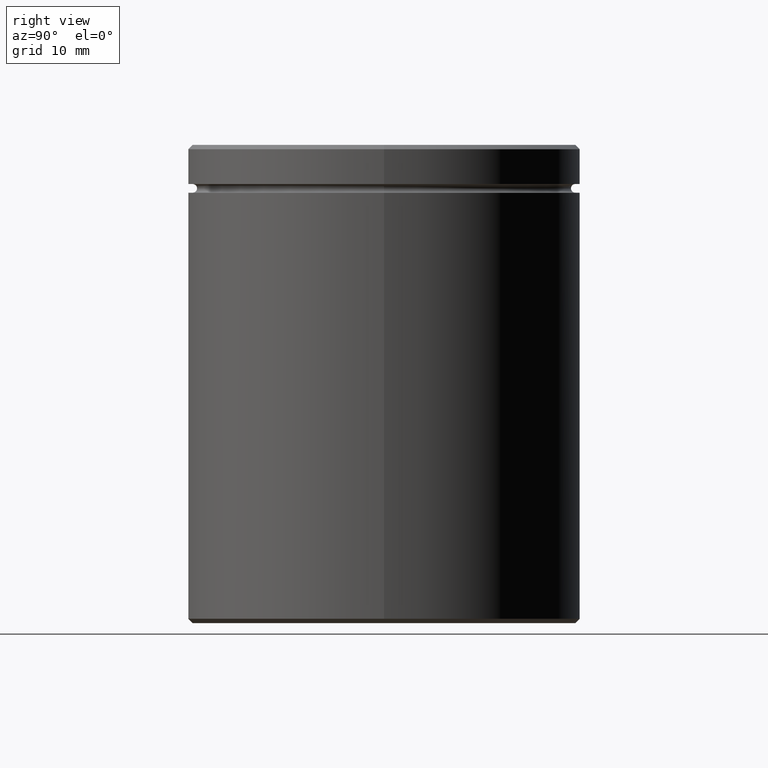
[diagram: clean part render]
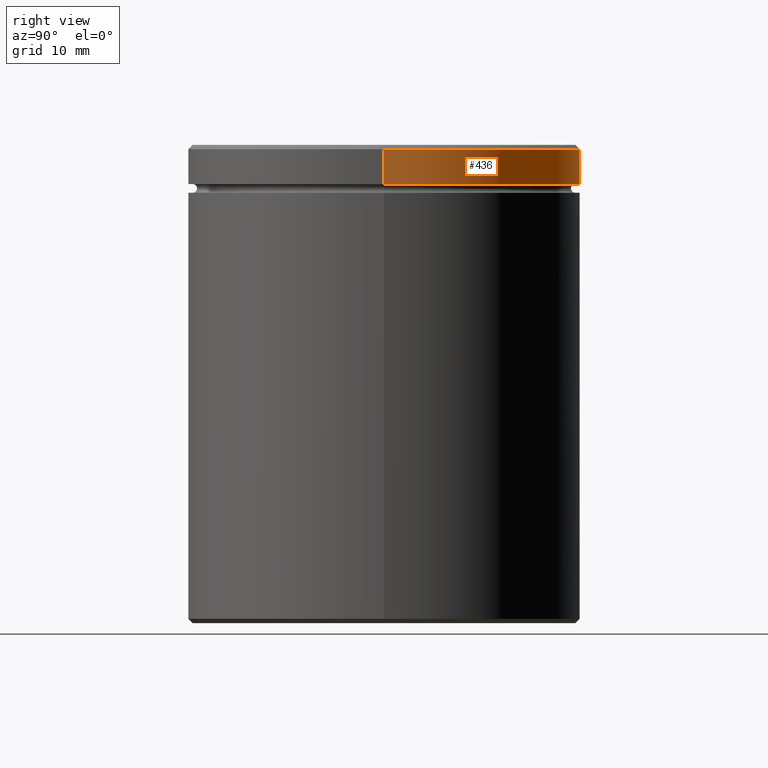
[diagram: same view with one face highlighted and labeled with its STEP entity id]
A machine part, right view. The second image highlights one B-rep face of the part: STEP entity #436.
In plain terms, the highlighted cylindrical surface (partial cylindrical patch) has radius 22.5 mm, axis along (-0, -0, 1).
Its self-contained STEP definition (entity closure, byte-faithful):
#16 = DIRECTION ( 'NONE',  ( -0.000000000000000000, -0.000000000000000000, 1.000000000000000000 ) ) ;
#53 = DIRECTION ( 'NONE',  ( 1.000000000000000000, 0.000000000000000000, 0.000000000000000000 ) ) ;
#68 = ORIENTED_EDGE ( 'NONE', *, *, #241, .T. ) ;
#127 = CARTESIAN_POINT ( 'NONE',  ( 22.50000000000000000, 0.000000000000000000, -0.5000000000000212053 ) ) ;
#149 = DIRECTION ( 'NONE',  ( -0.000000000000000000, -0.000000000000000000, 1.000000000000000000 ) ) ;
#160 = LINE ( 'NONE', #260, #287 ) ;
#163 = DIRECTION ( 'NONE',  ( -0.000000000000000000, -0.000000000000000000, 1.000000000000000000 ) ) ;
#173 = EDGE_CURVE ( 'NONE', #500, #434, #238, .T. ) ;
#180 = CIRCLE ( 'NONE', #502, 22.50000000000000000 ) ;
#183 = DIRECTION ( 'NONE',  ( 1.000000000000000000, 0.000000000000000000, 0.000000000000000000 ) ) ;
#203 = ORIENTED_EDGE ( 'NONE', *, *, #173, .T. ) ;
#211 = DIRECTION ( 'NONE',  ( -0.000000000000000000, -0.000000000000000000, 1.000000000000000000 ) ) ;
#221 = VERTEX_POINT ( 'NONE', #547 ) ;
#222 = EDGE_CURVE ( 'NONE', #434, #293, #180, .T. ) ;
#233 = DIRECTION ( 'NONE',  ( 0.000000000000000000, 0.000000000000000000, -1.000000000000000000 ) ) ;
#238 = LINE ( 'NONE', #291, #276 ) ;
#241 = EDGE_CURVE ( 'NONE', #221, #500, #308, .T. ) ;
#260 = CARTESIAN_POINT ( 'NONE',  ( 22.50000000000000000, 0.000000000000000000, 0.000000000000000000 ) ) ;
#276 = VECTOR ( 'NONE', #149, 1000.000000000000000 ) ;
#287 = VECTOR ( 'NONE', #163, 1000.000000000000000 ) ;
#291 = CARTESIAN_POINT ( 'NONE',  ( -22.50000000000000000, 2.755455298081544778E-15, 0.000000000000000000 ) ) ;
#293 = VERTEX_POINT ( 'NONE', #127 ) ;
#303 = EDGE_LOOP ( 'NONE', ( #68, #203, #330, #518 ) ) ;
#308 = CIRCLE ( 'NONE', #387, 22.50000000000000000 ) ;
#310 = DIRECTION ( 'NONE',  ( 1.000000000000000000, 0.000000000000000000, 0.000000000000000000 ) ) ;
#330 = ORIENTED_EDGE ( 'NONE', *, *, #222, .T. ) ;
#374 = CARTESIAN_POINT ( 'NONE',  ( 0.000000000000000000, 0.000000000000000000, 0.000000000000000000 ) ) ;
#387 = AXIS2_PLACEMENT_3D ( 'NONE', #414, #16, #53 ) ;
#414 = CARTESIAN_POINT ( 'NONE',  ( 0.000000000000000000, 0.000000000000000000, -4.500000000000000888 ) ) ;
#419 = CYLINDRICAL_SURFACE ( 'NONE', #459, 22.50000000000000000 ) ;
#434 = VERTEX_POINT ( 'NONE', #497 ) ;
#436 = ADVANCED_FACE ( 'NONE', ( #496 ), #419, .T. ) ;
#459 = AXIS2_PLACEMENT_3D ( 'NONE', #374, #211, #310 ) ;
#496 = FACE_OUTER_BOUND ( 'NONE', #303, .T. ) ;
#497 = CARTESIAN_POINT ( 'NONE',  ( -22.50000000000000000, 2.755455298081544778E-15, -0.5000000000000212053 ) ) ;
#500 = VERTEX_POINT ( 'NONE', #527 ) ;
#502 = AXIS2_PLACEMENT_3D ( 'NONE', #508, #233, #183 ) ;
#508 = CARTESIAN_POINT ( 'NONE',  ( 0.000000000000000000, 0.000000000000000000, -0.5000000000000212053 ) ) ;
#518 = ORIENTED_EDGE ( 'NONE', *, *, #537, .F. ) ;
#527 = CARTESIAN_POINT ( 'NONE',  ( -22.50000000000000000, 2.755455298081544778E-15, -4.500000000000000888 ) ) ;
#537 = EDGE_CURVE ( 'NONE', #221, #293, #160, .T. ) ;
#547 = CARTESIAN_POINT ( 'NONE',  ( 22.50000000000000000, 0.000000000000000000, -4.500000000000000888 ) ) ;